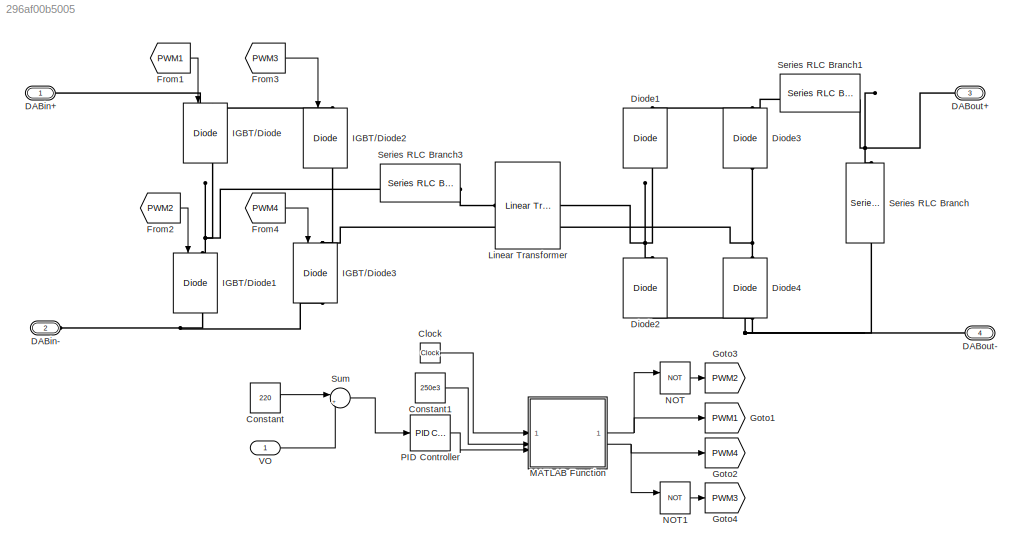
MODEL slx_296af00b5005
KIND model
CONFIG AbsTol = auto
CONFIG EnableMultiTasking = off
CONFIG FixedStep = auto
CONFIG MaxStep = auto
CONFIG MinStep = auto
CONFIG RelTol = 1e-3
CONFIG SampleTimeConstraint = Unconstrained
CONFIG SolverName = VariableStepAuto
CONFIG StartTime = 0.0
CONFIG StopTime = 10.0
BLOCK [Clock] Clock
BLOCK [Constant] Constant
  Value = 220
BLOCK [Constant] Constant1
  Value = 250e3
BLOCK [PMIOPort] DABin+
  Side = Left
BLOCK [PMIOPort] DABin-
  Port = 2
  Side = Left
BLOCK [PMIOPort] DABout+
  Port = 3
  Side = Right
BLOCK [PMIOPort] DABout-
  Port = 4
  Side = Right
BLOCK [Reference] Diode1  REF=spsDiodeLib/Diode
  LibrarySourceBlock = sps_lib/Power Electronics/Diode
  NameLocation = right
  SourceBlock = spsDiodeLib/Diode
  SourceType = Diode
BLOCK [Reference] Diode2  REF=spsDiodeLib/Diode
  LibrarySourceBlock = sps_lib/Power Electronics/Diode
  NameLocation = right
  SourceBlock = spsDiodeLib/Diode
  SourceType = Diode
BLOCK [Reference] Diode3  REF=spsDiodeLib/Diode
  LibrarySourceBlock = sps_lib/Power Electronics/Diode
  NameLocation = right
  SourceBlock = spsDiodeLib/Diode
  SourceType = Diode
BLOCK [Reference] Diode4  REF=spsDiodeLib/Diode
  LibrarySourceBlock = sps_lib/Power Electronics/Diode
  NameLocation = right
  SourceBlock = spsDiodeLib/Diode
  SourceType = Diode
BLOCK [From] From1
  GotoTag = PWM1
BLOCK [From] From2
  GotoTag = PWM2
BLOCK [From] From3
  GotoTag = PWM3
BLOCK [From] From4
  GotoTag = PWM4
BLOCK [Goto] Goto1
  GotoTag = PWM1
BLOCK [Goto] Goto2
  GotoTag = PWM4
BLOCK [Goto] Goto3
  GotoTag = PWM2
BLOCK [Goto] Goto4
  GotoTag = PWM3
BLOCK [Reference] IGBT//Diode  REF=spsIGBTDiodeLib/IGBT//Diode
  LibrarySourceBlock = sps_lib/Power Electronics/IGBT//Diode
  NameLocation = left
  SourceBlock = spsIGBTDiodeLib/IGBT//Diode
  SourceType = IGBT/Diode
BLOCK [Reference] IGBT//Diode1  REF=spsIGBTDiodeLib/IGBT//Diode
  LibrarySourceBlock = sps_lib/Power Electronics/IGBT//Diode
  NameLocation = left
  SourceBlock = spsIGBTDiodeLib/IGBT//Diode
  SourceType = IGBT/Diode
BLOCK [Reference] IGBT//Diode2  REF=spsIGBTDiodeLib/IGBT//Diode
  LibrarySourceBlock = sps_lib/Power Electronics/IGBT//Diode
  NameLocation = left
  SourceBlock = spsIGBTDiodeLib/IGBT//Diode
  SourceType = IGBT/Diode
BLOCK [Reference] IGBT//Diode3  REF=spsIGBTDiodeLib/IGBT//Diode
  LibrarySourceBlock = sps_lib/Power Electronics/IGBT//Diode
  NameLocation = left
  SourceBlock = spsIGBTDiodeLib/IGBT//Diode
  SourceType = IGBT/Diode
BLOCK [Reference] Linear Transformer  REF=spsLinearTransformerLib/Linear Transformer
  LibrarySourceBlock = sps_lib/Power Grid Elements/Linear Transformer
  SourceBlock = spsLinearTransformerLib/Linear Transformer
  SourceType = Linear Transformer
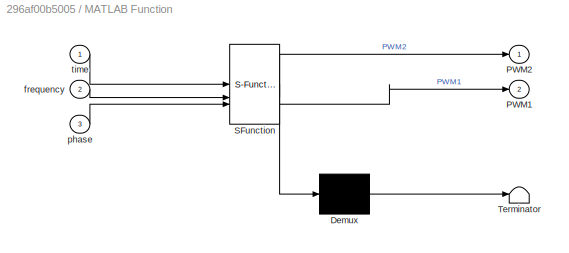
BLOCK [SubSystem] MATLAB Function
  ErrorFcn = Stateflow.Translate.translate
  LibrarySourceBlock = simulink/User-Defined\nFunctions/MATLAB Function
  PermitHierarchicalResolution = ExplicitOnly
  SFBlockType = MATLAB Function
  TreatAsAtomicUnit = on
BLOCK [Demux] MATLAB Function/ Demux 
  Outputs = 1
BLOCK [S-Function] MATLAB Function/ SFunction 
  EnableBusSupport = on
  FunctionName = sf_sfun
  PortCounts = [3 3]
  SFcnIsStateOwnerBlock = off
  SFunctionDeploymentMode = off
  Tag = Stateflow S-Function 2
BLOCK [Terminator] MATLAB Function/ Terminator 
BLOCK [Outport] MATLAB Function/PWM1
  Port = 2
BLOCK [Outport] MATLAB Function/PWM2
BLOCK [Inport] MATLAB Function/frequency
  Port = 2
BLOCK [Inport] MATLAB Function/phase
  Port = 3
BLOCK [Inport] MATLAB Function/time
BLOCK [Logic] NOT
  AllPortsSameDT = off
  IconShape = distinctive
  Operator = NOT
  OutDataTypeStr = boolean
BLOCK [Logic] NOT1
  AllPortsSameDT = off
  IconShape = distinctive
  Operator = NOT
  OutDataTypeStr = boolean
BLOCK [Reference] PID Controller  REF=slpidlib/PID Controller
  LibrarySourceBlock = simulink/Continuous/PID Controller
  SourceBlock = slpidlib/PID Controller
  SourceType = PID 1dof
BLOCK [Reference] Series RLC Branch  REF=spsSeriesRLCBranchLib/Series RLC Branch
  LibrarySourceBlock = sps_lib/Passives/Series RLC Branch
  NameLocation = left
  SourceBlock = spsSeriesRLCBranchLib/Series RLC Branch
  SourceType = Series RLC Branch
BLOCK [Reference] Series RLC Branch1  REF=spsSeriesRLCBranchLib/Series RLC Branch
  LibrarySourceBlock = sps_lib/Passives/Series RLC Branch
  SourceBlock = spsSeriesRLCBranchLib/Series RLC Branch
  SourceType = Series RLC Branch
BLOCK [Reference] Series RLC Branch3  REF=spsSeriesRLCBranchLib/Series RLC Branch
  LibrarySourceBlock = sps_lib/Passives/Series RLC Branch
  SourceBlock = spsSeriesRLCBranchLib/Series RLC Branch
  SourceType = Series RLC Branch
BLOCK [Sum] Sum
  Inputs = |+-
BLOCK [Inport] VO
LINE Clock:1 -> MATLAB Function:1
LINE Constant1:1 -> MATLAB Function:2
LINE Constant:1 -> Sum:1
LINE From1:1 -> IGBT//Diode:1
LINE From2:1 -> IGBT//Diode1:1
LINE From3:1 -> IGBT//Diode2:1
LINE From4:1 -> IGBT//Diode3:1
NET MATLAB Function:1 -> Goto1:1, NOT:1
NET MATLAB Function:2 -> Goto2:1, NOT1:1
LINE NOT1:1 -> Goto4:1
LINE NOT:1 -> Goto3:1
LINE PID Controller:1 -> MATLAB Function:3
LINE Sum:1 -> PID Controller:1
LINE VO:1 -> Sum:2
PNET net1: DABin+:RConn1 -- IGBT//Diode2:LConn1 -- IGBT//Diode:LConn1
PNET net2: DABin-:RConn1 -- IGBT//Diode1:RConn1 -- IGBT//Diode3:RConn1
PNET net3: DABout+:RConn1 -- Series RLC Branch1:RConn1 -- Series RLC Branch:LConn1
PNET net4: DABout-:RConn1 -- Diode2:LConn1 -- Diode4:LConn1 -- Series RLC Branch:RConn1
PNET net5: Diode1:LConn1 -- Diode2:RConn1 -- Linear Transformer:RConn1
PNET net6: Diode1:RConn1 -- Diode3:RConn1 -- Series RLC Branch1:LConn1
PNET net7: Diode3:LConn1 -- Diode4:RConn1 -- Linear Transformer:RConn2
PNET net8: IGBT//Diode1:LConn1 -- IGBT//Diode:RConn1 -- Series RLC Branch3:LConn1
PNET net9: IGBT//Diode2:RConn1 -- IGBT//Diode3:LConn1 -- Linear Transformer:LConn2
PLINE Linear Transformer:LConn1 -- Series RLC Branch3:RConn1
note: NET lines group one-source signal fan-out (src -> all destinations, sorted); 1:1 wires keep LINE; PNET lines group multi-terminal physical nets as a canonical sorted terminal list (undirected conserving connections); 2-terminal nets keep the pairwise PLINE form
CHART MATLAB Function states=1 transitions=1
  STATE_LABEL 'eML_blk_kernel()'
  STATE_LABEL 'SCRIPT:\nfunction [PWM2, PWM1] = fcn(time, frequency, phase)\n\nT_switching = 1/frequency;\nPWM1 = 0;\nPWM2 = 0;\nx = mod(time, T_switching);\nif x<T_switching/2\n\tPWM1 = 1;\nend\nt_phi = T_switching+phase/360;\ny= mod(time+t_phi, T_switching);\nif y<T_switching/2\n\tPWM2 = 1;\nend'
CHART  states=0 transitions=0
